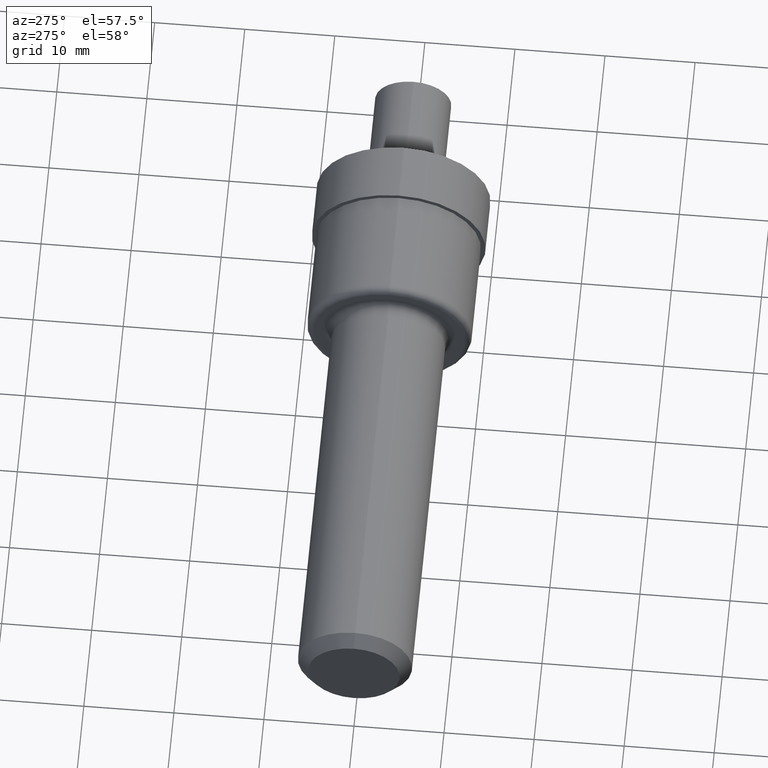
[diagram: clean part render]
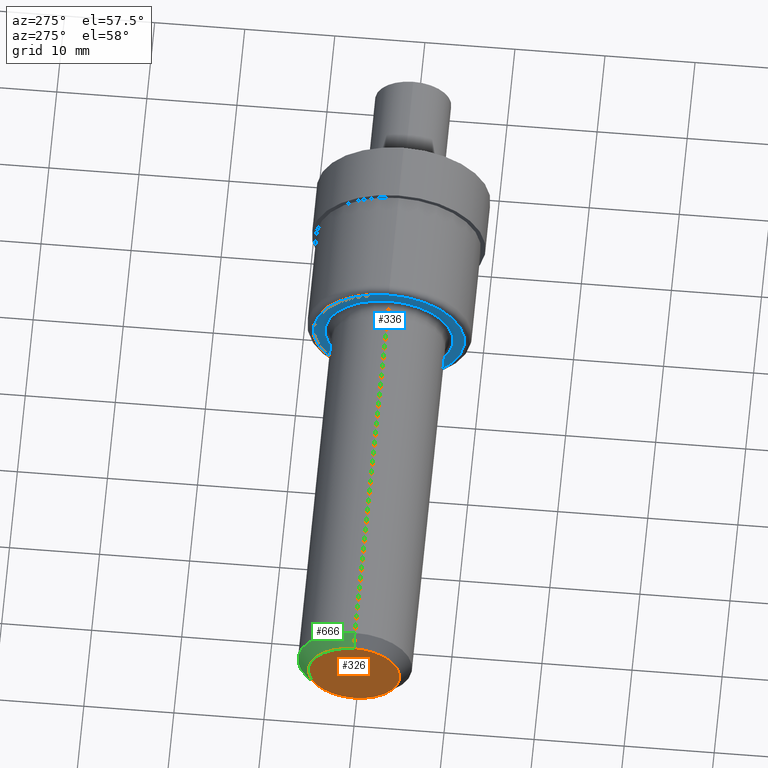
[diagram: same view with three faces highlighted in distinct colors, each labeled with its STEP entity id]
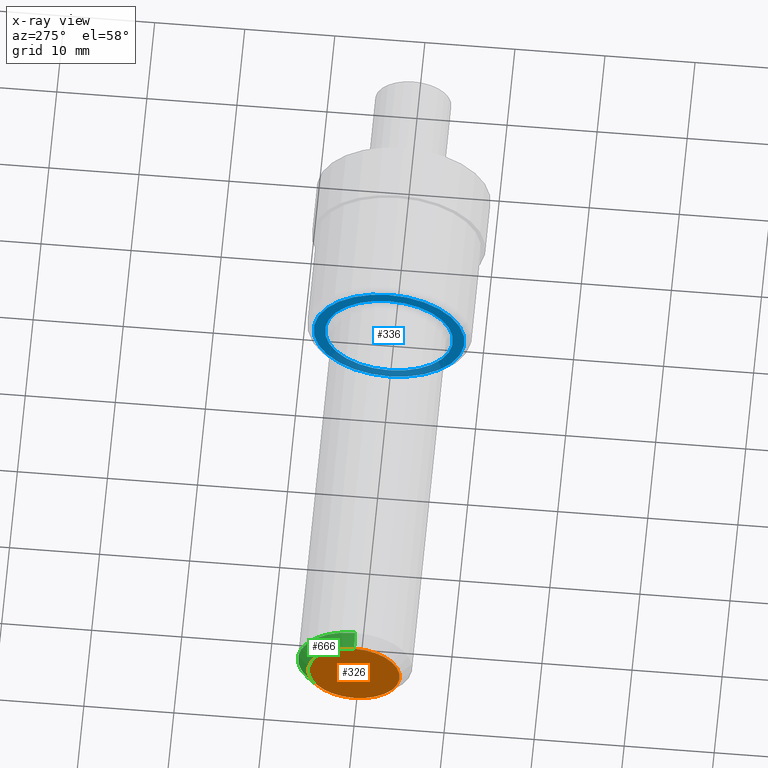
[diagram: x-ray of the same camera — body ghosted, the three highlighted faces saturated]
A machine part, auxiliary view with three faces highlighted in distinct colors.
The next image is the same camera in x-ray (body ghosted, the three faces saturated) — at least one of them is partly hidden behind the body in this view.
Their STEP definitions:

[orange] entity #326 — the highlighted planar face has unit normal (1, 0, 0).
#30 = DIRECTION ( 'NONE',  ( 1.000000000000000000, 0.0000000000000000000, 0.0000000000000000000 ) ) ;
#102 = CARTESIAN_POINT ( 'NONE',  ( 0.0000000000000000000, 0.0000000000000000000, 0.0000000000000000000 ) ) ;
#112 = CIRCLE ( 'NONE', #369, 0.1998500000000001700 ) ;
#138 = DIRECTION ( 'NONE',  ( -1.000000000000000000, -0.0000000000000000000, -0.0000000000000000000 ) ) ;
#151 = DIRECTION ( 'NONE',  ( 0.0000000000000000000, 0.0000000000000000000, 1.000000000000000000 ) ) ;
#152 = AXIS2_PLACEMENT_3D ( 'NONE', #347, #30, #404 ) ;
#157 = VERTEX_POINT ( 'NONE', #286 ) ;
#191 = VERTEX_POINT ( 'NONE', #230 ) ;
#230 = CARTESIAN_POINT ( 'NONE',  ( 0.0000000000000000000, 2.753618327882825200E-017, 0.1998500000000001700 ) ) ;
#286 = CARTESIAN_POINT ( 'NONE',  ( 0.0000000000000000000, 0.0000000000000000000, -0.1998500000000001700 ) ) ;
#312 = AXIS2_PLACEMENT_3D ( 'NONE', #452, #138, #513 ) ;
#314 = EDGE_CURVE ( 'NONE', #191, #157, #381, .T. ) ;
#326 = ADVANCED_FACE ( 'NONE', ( #352 ), #560, .F. ) ;
#347 = CARTESIAN_POINT ( 'NONE',  ( 0.0000000000000000000, 0.0000000000000000000, 0.0000000000000000000 ) ) ;
#352 = FACE_OUTER_BOUND ( 'NONE', #638, .T. ) ;
#369 = AXIS2_PLACEMENT_3D ( 'NONE', #102, #474, #151 ) ;
#381 = CIRCLE ( 'NONE', #312, 0.1998500000000001700 ) ;
#404 = DIRECTION ( 'NONE',  ( 0.0000000000000000000, 0.0000000000000000000, -1.000000000000000000 ) ) ;
#452 = CARTESIAN_POINT ( 'NONE',  ( 0.0000000000000000000, 0.0000000000000000000, 0.0000000000000000000 ) ) ;
#464 = ORIENTED_EDGE ( 'NONE', *, *, #499, .T. ) ;
#474 = DIRECTION ( 'NONE',  ( -1.000000000000000000, -0.0000000000000000000, -0.0000000000000000000 ) ) ;
#476 = ORIENTED_EDGE ( 'NONE', *, *, #314, .T. ) ;
#499 = EDGE_CURVE ( 'NONE', #157, #191, #112, .T. ) ;
#513 = DIRECTION ( 'NONE',  ( 0.0000000000000000000, 0.0000000000000000000, 1.000000000000000000 ) ) ;
#560 = PLANE ( 'NONE',  #152 ) ;
#638 = EDGE_LOOP ( 'NONE', ( #464, #476 ) ) ;

[blue] entity #336 — the highlighted planar face has unit normal (1, 0, 0).
#14 = EDGE_CURVE ( 'NONE', #487, #216, #262, .T. ) ;
#59 = EDGE_CURVE ( 'NONE', #204, #367, #113, .T. ) ;
#67 = CARTESIAN_POINT ( 'NONE',  ( 1.750000000000000000, 0.0000000000000000000, 0.0000000000000000000 ) ) ;
#86 = PLANE ( 'NONE',  #211 ) ;
#92 = ORIENTED_EDGE ( 'NONE', *, *, #277, .T. ) ;
#113 = CIRCLE ( 'NONE', #305, 0.2798500000000004300 ) ;
#121 = DIRECTION ( 'NONE',  ( 0.0000000000000000000, 0.0000000000000000000, 1.000000000000000000 ) ) ;
#132 = DIRECTION ( 'NONE',  ( 0.0000000000000000000, 0.0000000000000000000, 1.000000000000000000 ) ) ;
#143 = AXIS2_PLACEMENT_3D ( 'NONE', #662, #279, #229 ) ;
#147 = ORIENTED_EDGE ( 'NONE', *, *, #641, .F. ) ;
#150 = CARTESIAN_POINT ( 'NONE',  ( 1.750000000000000000, 4.225031457058367200E-017, -0.3299999999999999000 ) ) ;
#158 = CIRCLE ( 'NONE', #361, 0.2798500000000004300 ) ;
#162 = CARTESIAN_POINT ( 'NONE',  ( 1.750000000000000000, 0.0000000000000000000, 0.3299999999999999000 ) ) ;
#170 = ORIENTED_EDGE ( 'NONE', *, *, #59, .F. ) ;
#184 = CARTESIAN_POINT ( 'NONE',  ( 1.750000000000000000, 0.3299999999999999000, 0.0000000000000000000 ) ) ;
#187 = DIRECTION ( 'NONE',  ( 0.0000000000000000000, 0.0000000000000000000, -1.000000000000000000 ) ) ;
#198 = AXIS2_PLACEMENT_3D ( 'NONE', #443, #275, #132 ) ;
#204 = VERTEX_POINT ( 'NONE', #439 ) ;
#205 = FACE_OUTER_BOUND ( 'NONE', #238, .T. ) ;
#211 = AXIS2_PLACEMENT_3D ( 'NONE', #184, #561, #187 ) ;
#216 = VERTEX_POINT ( 'NONE', #162 ) ;
#229 = DIRECTION ( 'NONE',  ( 0.0000000000000000000, 0.0000000000000000000, 1.000000000000000000 ) ) ;
#238 = EDGE_LOOP ( 'NONE', ( #92, #678 ) ) ;
#262 = CIRCLE ( 'NONE', #198, 0.3299999999999999000 ) ;
#275 = DIRECTION ( 'NONE',  ( -1.000000000000000000, -0.0000000000000000000, -0.0000000000000000000 ) ) ;
#277 = EDGE_CURVE ( 'NONE', #216, #487, #533, .T. ) ;
#279 = DIRECTION ( 'NONE',  ( -1.000000000000000000, -0.0000000000000000000, -0.0000000000000000000 ) ) ;
#305 = AXIS2_PLACEMENT_3D ( 'NONE', #325, #339, #591 ) ;
#325 = CARTESIAN_POINT ( 'NONE',  ( 1.750000000000000000, 0.0000000000000000000, 0.0000000000000000000 ) ) ;
#336 = ADVANCED_FACE ( 'NONE', ( #366, #205 ), #86, .F. ) ;
#339 = DIRECTION ( 'NONE',  ( -1.000000000000000000, -0.0000000000000000000, -0.0000000000000000000 ) ) ;
#361 = AXIS2_PLACEMENT_3D ( 'NONE', #67, #438, #121 ) ;
#366 = FACE_BOUND ( 'NONE', #528, .T. ) ;
#367 = VERTEX_POINT ( 'NONE', #517 ) ;
#438 = DIRECTION ( 'NONE',  ( -1.000000000000000000, -0.0000000000000000000, -0.0000000000000000000 ) ) ;
#439 = CARTESIAN_POINT ( 'NONE',  ( 1.750000000000000000, 3.427174067413873200E-017, -0.2798500000000004300 ) ) ;
#443 = CARTESIAN_POINT ( 'NONE',  ( 1.750000000000000000, 0.0000000000000000000, 0.0000000000000000000 ) ) ;
#487 = VERTEX_POINT ( 'NONE', #150 ) ;
#517 = CARTESIAN_POINT ( 'NONE',  ( 1.750000000000000000, 0.0000000000000000000, 0.2798500000000004300 ) ) ;
#528 = EDGE_LOOP ( 'NONE', ( #147, #170 ) ) ;
#533 = CIRCLE ( 'NONE', #143, 0.3299999999999999000 ) ;
#561 = DIRECTION ( 'NONE',  ( 1.000000000000000000, 0.0000000000000000000, 0.0000000000000000000 ) ) ;
#591 = DIRECTION ( 'NONE',  ( 0.0000000000000000000, 0.0000000000000000000, 1.000000000000000000 ) ) ;
#641 = EDGE_CURVE ( 'NONE', #367, #204, #158, .T. ) ;
#662 = CARTESIAN_POINT ( 'NONE',  ( 1.750000000000000000, 0.0000000000000000000, 0.0000000000000000000 ) ) ;
#678 = ORIENTED_EDGE ( 'NONE', *, *, #14, .T. ) ;

[green] entity #666 — the highlighted conical surface has half-angle 45 deg.
#1 = VERTEX_POINT ( 'NONE', #440 ) ;
#16 = LINE ( 'NONE', #194, #589 ) ;
#70 = CARTESIAN_POINT ( 'NONE',  ( 0.05000000000000000300, 3.059780027669662500E-017, 0.2498500000000000400 ) ) ;
#126 = CIRCLE ( 'NONE', #477, 0.2498500000000000400 ) ;
#138 = DIRECTION ( 'NONE',  ( -1.000000000000000000, -0.0000000000000000000, -0.0000000000000000000 ) ) ;
#148 = DIRECTION ( 'NONE',  ( -1.000000000000000000, -0.0000000000000000000, -0.0000000000000000000 ) ) ;
#157 = VERTEX_POINT ( 'NONE', #286 ) ;
#163 = ORIENTED_EDGE ( 'NONE', *, *, #424, .T. ) ;
#191 = VERTEX_POINT ( 'NONE', #230 ) ;
#194 = CARTESIAN_POINT ( 'NONE',  ( 0.05000000000000000300, 3.059780027669662500E-017, 0.2498500000000000400 ) ) ;
#219 = CARTESIAN_POINT ( 'NONE',  ( 0.05000000000000000300, 0.0000000000000000000, 0.0000000000000000000 ) ) ;
#230 = CARTESIAN_POINT ( 'NONE',  ( 0.0000000000000000000, 2.753618327882825200E-017, 0.1998500000000001700 ) ) ;
#247 = DIRECTION ( 'NONE',  ( 0.7071067811865483500, 8.659560562354923000E-017, 0.7071067811865465700 ) ) ;
#286 = CARTESIAN_POINT ( 'NONE',  ( 0.0000000000000000000, 0.0000000000000000000, -0.1998500000000001700 ) ) ;
#303 = FACE_OUTER_BOUND ( 'NONE', #423, .T. ) ;
#312 = AXIS2_PLACEMENT_3D ( 'NONE', #452, #138, #513 ) ;
#314 = EDGE_CURVE ( 'NONE', #191, #157, #381, .T. ) ;
#375 = CONICAL_SURFACE ( 'NONE', #472, 0.2498500000000000400, 0.7853981633974470600 ) ;
#381 = CIRCLE ( 'NONE', #312, 0.1998500000000001700 ) ;
#382 = ORIENTED_EDGE ( 'NONE', *, *, #386, .F. ) ;
#386 = EDGE_CURVE ( 'NONE', #157, #1, #585, .T. ) ;
#411 = DIRECTION ( 'NONE',  ( 0.7071067811865483500, 0.0000000000000000000, -0.7071067811865465700 ) ) ;
#423 = EDGE_LOOP ( 'NONE', ( #510, #163, #478, #382 ) ) ;
#424 = EDGE_CURVE ( 'NONE', #191, #581, #16, .T. ) ;
#440 = CARTESIAN_POINT ( 'NONE',  ( 0.05000000000000000300, 0.0000000000000000000, -0.2498500000000000400 ) ) ;
#445 = VECTOR ( 'NONE', #411, 39.37007874015748900 ) ;
#452 = CARTESIAN_POINT ( 'NONE',  ( 0.0000000000000000000, 0.0000000000000000000, 0.0000000000000000000 ) ) ;
#458 = EDGE_CURVE ( 'NONE', #581, #1, #126, .T. ) ;
#470 = CARTESIAN_POINT ( 'NONE',  ( 0.05000000000000000300, 0.0000000000000000000, 0.0000000000000000000 ) ) ;
#472 = AXIS2_PLACEMENT_3D ( 'NONE', #219, #495, #657 ) ;
#477 = AXIS2_PLACEMENT_3D ( 'NONE', #470, #148, #526 ) ;
#478 = ORIENTED_EDGE ( 'NONE', *, *, #458, .T. ) ;
#495 = DIRECTION ( 'NONE',  ( 1.000000000000000000, 0.0000000000000000000, 0.0000000000000000000 ) ) ;
#510 = ORIENTED_EDGE ( 'NONE', *, *, #314, .F. ) ;
#513 = DIRECTION ( 'NONE',  ( 0.0000000000000000000, 0.0000000000000000000, 1.000000000000000000 ) ) ;
#526 = DIRECTION ( 'NONE',  ( 0.0000000000000000000, 0.0000000000000000000, 1.000000000000000000 ) ) ;
#581 = VERTEX_POINT ( 'NONE', #70 ) ;
#585 = LINE ( 'NONE', #679, #445 ) ;
#589 = VECTOR ( 'NONE', #247, 39.37007874015748900 ) ;
#657 = DIRECTION ( 'NONE',  ( 0.0000000000000000000, 0.0000000000000000000, -1.000000000000000000 ) ) ;
#666 = ADVANCED_FACE ( 'NONE', ( #303 ), #375, .T. ) ;
#679 = CARTESIAN_POINT ( 'NONE',  ( 0.05000000000000000300, 0.0000000000000000000, -0.2498500000000000400 ) ) ;